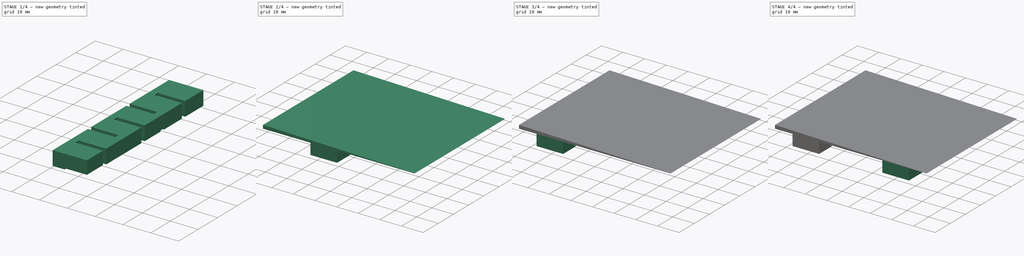
[diagram: build sequence overview — one tinted view per stage of 4, left to right]
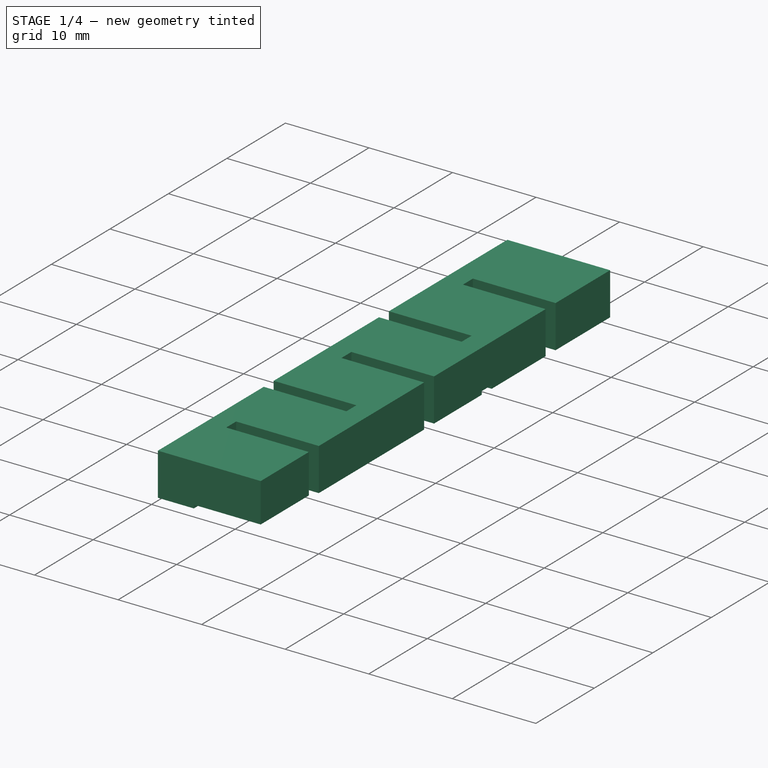
[diagram: stage 1 of 4 — iso view after this stage's code; geometry added in this stage tinted green]
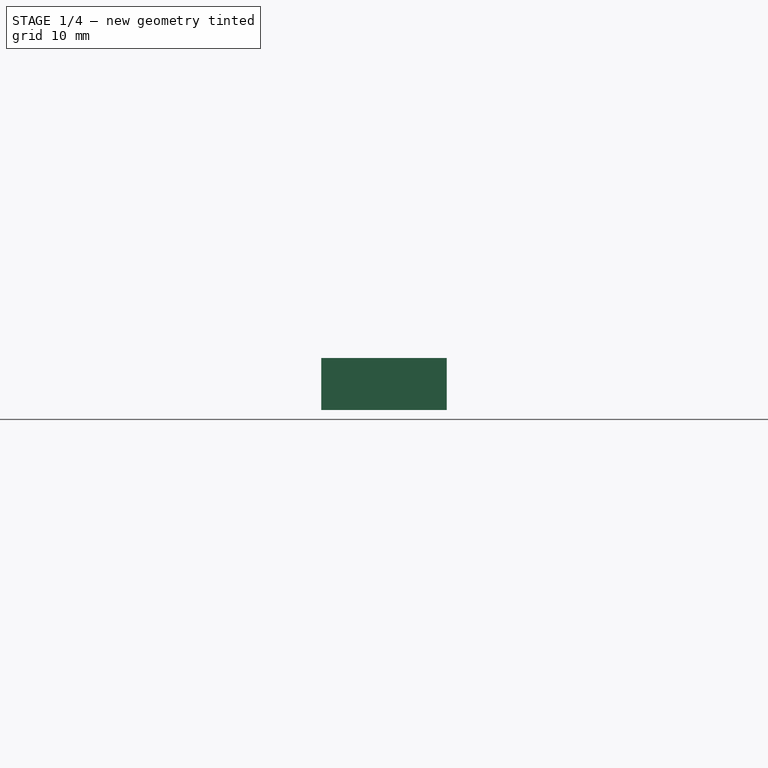
[diagram: stage 1 of 4 — front view after this stage's code; geometry added in this stage tinted green]
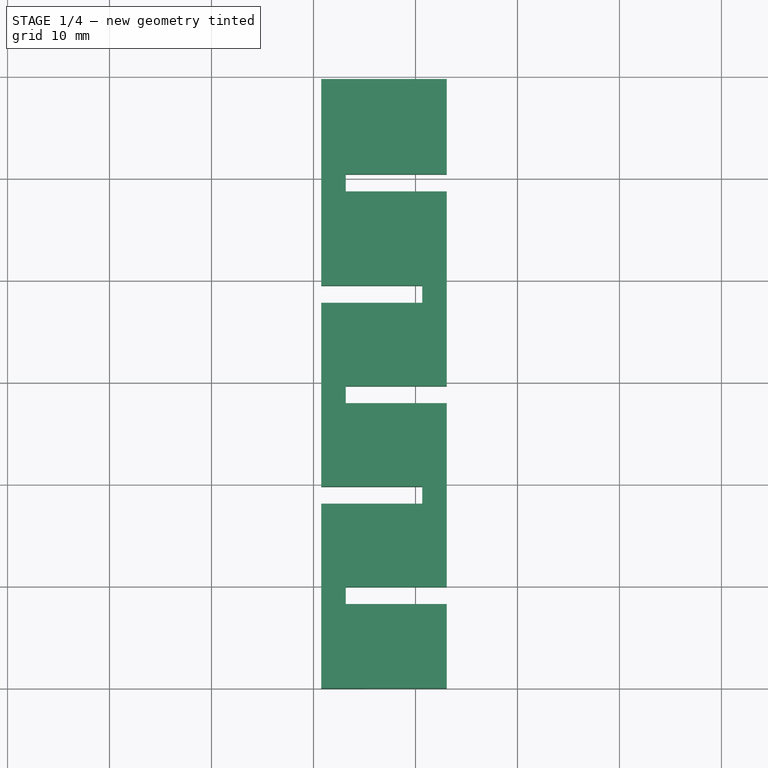
[diagram: stage 1 of 4 — top view after this stage's code; geometry added in this stage tinted green]
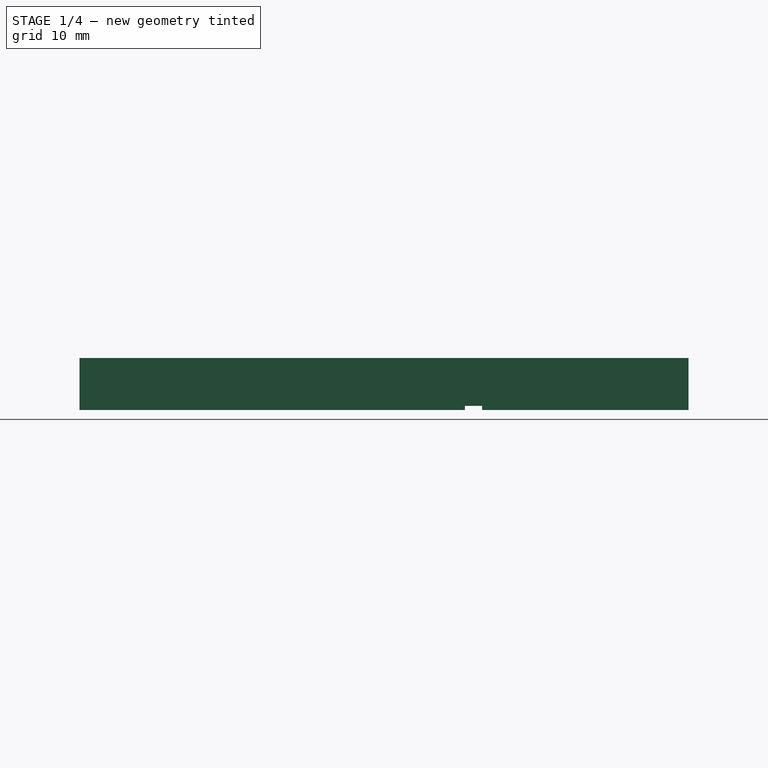
[diagram: stage 1 of 4 — right view after this stage's code; geometry added in this stage tinted green]
FCSTD DOCUMENT  (FreeCAD 0.21R33771 (Git))
Label: spacer
License: All rights reserved
LicenseURL: http://en.wikipedia.org/wiki/All_rights_reserved
objects: Sketcher::SketchObject×15, PartDesign::Plane×8, PartDesign::Pad×5, PartDesign::Pocket×5, PartDesign::Body×5, PartDesign::SubShapeBinder×3, Spreadsheet::Sheet×1
note: 51 computed .brp shape members not serialized (recipe doc carries the construction recipe); baked Part::Feature solids carry a one-line shape summary decoded from their .brp

FEATURE [Spreadsheet::Sheet] Spreadsheet
  cells = A1='GridW; B1(GridW)=12.3; A2='GridWallW; B2(GridWallW)=1.525; A3='GridCellL1; B3(GridCellL1)=8.325; A4='GridCellL2; B4(GridCellL2)=9.4; A5='GridSlitPad; B5(GridSlitPad)=0.0875; A6='GridSlitW; B6(GridSlitW)=2.4; A7='GridWallPad; B7(GridWallPad)=0; A8='GridHeight; B8(GridHeight)=5.1; A9='GridDotPock; B9(GridDotPock)=8; A10='GridPock; B10(GridPock)=0.4
FEATURE [Sketcher::SketchObject] Sketch
  FullyConstrained = true
  MapMode = 5
  Support = -> [XY_Plane]
  expr: Constraints[14] = Spreadsheet.GridCellL1 - Spreadsheet.GridSlitPad
  expr: Constraints[15] = Spreadsheet.GridW - Spreadsheet.GridSlitW - Spreadsheet.GridWallPad
  expr: Constraints[16] = Spreadsheet.GridWallW + Spreadsheet.GridSlitPad * 2
  expr: Constraints[2] = Spreadsheet.GridWallW / 2 + Spreadsheet.GridWallPad
  expr: Constraints[32] = Spreadsheet.GridCellL1 - Spreadsheet.GridSlitPad * 2
  expr: Constraints[5] = Spreadsheet.GridW - Spreadsheet.GridWallPad * 2
  expr: Constraints[69] = Spreadsheet.GridCellL2 - Spreadsheet.GridSlitPad * 2
  expr: Constraints[82] = Spreadsheet.GridCellL2 - Spreadsheet.GridSlitPad
  sketch-geometry (29):
    g0: LineSegment StartX=0 StartY=0 StartZ=0 EndX=0.7625 EndY=0 EndZ=0
    g1: LineSegment StartX=0.7625 StartY=0 StartZ=0 EndX=13.0625 EndY=0 EndZ=0
    g2: LineSegment StartX=13.0625 StartY=0 StartZ=0 EndX=13.0625 EndY=8.2375 EndZ=0
    g3: LineSegment StartX=13.0625 StartY=8.2375 StartZ=0 EndX=3.1625 EndY=8.2375 EndZ=0
    g4: LineSegment StartX=3.1625 StartY=8.2375 StartZ=0 EndX=3.1625 EndY=9.9375 EndZ=0
    g5: LineSegment StartX=3.1625 StartY=9.9375 StartZ=0 EndX=13.0625 EndY=9.9375 EndZ=0
    g6: LineSegment StartX=0.7625 StartY=0 StartZ=0 EndX=0.7625 EndY=18.0875 EndZ=0
    g7: LineSegment StartX=0.7625 StartY=18.0875 StartZ=0 EndX=10.6625 EndY=18.0875 EndZ=0
    g8: LineSegment StartX=10.6625 StartY=18.0875 StartZ=0 EndX=10.6625 EndY=19.7875 EndZ=0
    g9: LineSegment StartX=10.6625 StartY=19.7875 StartZ=0 EndX=0.7625 EndY=19.7875 EndZ=0
    g10: LineSegment StartX=10.6625 StartY=18.0875 StartZ=0 EndX=10.6625 EndY=9.9375 EndZ=0
    g11: LineSegment StartX=13.0625 StartY=27.9375 StartZ=0 EndX=3.1625 EndY=27.9375 EndZ=0
    g12: LineSegment StartX=3.1625 StartY=27.9375 StartZ=0 EndX=3.1625 EndY=29.6375 EndZ=0
    g13: LineSegment StartX=3.1625 StartY=29.6375 StartZ=0 EndX=13.0625 EndY=29.6375 EndZ=0
    g14: LineSegment StartX=3.1625 StartY=27.9375 StartZ=0 EndX=3.1625 EndY=19.7875 EndZ=0
    g15: LineSegment StartX=0.7625 StartY=19.7875 StartZ=0 EndX=0.7625 EndY=37.7875 EndZ=0
    g16: LineSegment StartX=0.7625 StartY=37.7875 StartZ=0 EndX=10.6625 EndY=37.7875 EndZ=0
    g17: LineSegment StartX=10.6625 StartY=37.7875 StartZ=0 EndX=10.6625 EndY=29.6375 EndZ=0
    g18: LineSegment StartX=10.6625 StartY=37.7875 StartZ=0 EndX=10.6625 EndY=39.4875 EndZ=0
    g19: LineSegment StartX=10.6625 StartY=39.4875 StartZ=0 EndX=0.7625 EndY=39.4875 EndZ=0
    g20: LineSegment StartX=13.0625 StartY=29.6375 StartZ=0 EndX=13.0625 EndY=48.7125 EndZ=0
    g21: LineSegment StartX=0.7625 StartY=39.4875 StartZ=0 EndX=0.7625 EndY=59.725 EndZ=0
    g22: LineSegment StartX=13.0625 StartY=48.7125 StartZ=0 EndX=3.1625 EndY=48.7125 EndZ=0
    g23: LineSegment StartX=3.1625 StartY=48.7125 StartZ=0 EndX=3.1625 EndY=39.4875 EndZ=0
    g24: LineSegment StartX=3.1625 StartY=48.7125 StartZ=0 EndX=3.1625 EndY=50.4125 EndZ=0
    g25: LineSegment StartX=3.1625 StartY=50.4125 StartZ=0 EndX=13.0625 EndY=50.4125 EndZ=0
    g26: LineSegment StartX=0.7625 StartY=59.725 StartZ=0 EndX=13.0625 EndY=59.725 EndZ=0
    g27: LineSegment StartX=13.0625 StartY=59.725 StartZ=0 EndX=13.0625 EndY=50.4125 EndZ=0
    g28: LineSegment StartX=13.0625 StartY=9.9375 StartZ=0 EndX=13.0625 EndY=27.9375 EndZ=0
  constraints (86):
    c: Coincident(g0,g-1)
    c: PointOnObject(g0,g-1)
    c: Distance(g0) = 0.7625
    c: Coincident(g1,g0)
    c: PointOnObject(g1,g-1)
    c: Distance(g1) = 12.3
    c: Coincident(g2,g1)
    c: Vertical(g2)
    c: Coincident(g3,g2)
    c: Horizontal(g3)
    c: Coincident(g4,g3)
    c: Vertical(g4)
    c: Coincident(g5,g4)
    c: Horizontal(g5)
    c: Distance(g2) = 8.2375
    c: Distance(g3) = 9.9
    c: Distance(g4) = 1.7
    c: Equal(g5,g3)
    c: Coincident(g6,g1)
    c: Vertical(g6)
    c: Coincident(g7,g6)
    c: Horizontal(g7)
    c: Equal(g7,g5)
    c: Coincident(g8,g7)
    c: Vertical(g8)
    c: Equal(g8,g4)
    c: Coincident(g9,g8)
    c: Horizontal(g9)
    c: Equal(g9,g7)
    c: Coincident(g10,g7)
    c: PointOnObject(g10,g5)
    c: Vertical(g10)
    c: Distance(g10) = 8.15
    c: Horizontal(g11)
    c: Equal(g11,g9)
    c: Coincident(g12,g11)
    c: Vertical(g12)
    c: Equal(g12,g8)
    c: Coincident(g13,g12)
    c: Horizontal(g13)
    c: Equal(g13,g11)
    c: Coincident(g14,g11)
    c: PointOnObject(g14,g9)
    c: Vertical(g14)
    c: Equal(g14,g10)
    c: Coincident(g15,g9)
    c: Vertical(g15)
    c: Coincident(g16,g15)
    c: Horizontal(g16)
    c: Equal(g16,g13)
    c: Coincident(g17,g16)
    c: PointOnObject(g17,g13)
    c: Vertical(g17)
    c: Equal(g17,g14)
    c: Coincident(g18,g16)
    c: Vertical(g18)
    c: Equal(g18,g12)
    c: Coincident(g19,g18)
    c: Horizontal(g19)
    c: Equal(g19,g16)
    c: Coincident(g20,g13)
    c: Vertical(g20)
    c: Coincident(g21,g19)
    c: Vertical(g21)
    c: Coincident(g22,g20)
    c: Horizontal(g22)
    c: Coincident(g23,g22)
    c: PointOnObject(g23,g19)
    c: Vertical(g23)
    c: Distance(g23) = 9.225
    c: Equal(g19,g22)
    c: Coincident(g24,g22)
    c: Vertical(g24)
    c: Equal(g24,g18)
    c: Coincident(g25,g24)
    c: Horizontal(g25)
    c: Equal(g25,g22)
    c: Coincident(g26,g21)
    c: Horizontal(g26)
    c: Coincident(g27,g26)
    c: Coincident(g27,g25)
    c: Vertical(g27)
    c: Distance(g27) = 9.3125
    c: Coincident(g28,g5)
    c: Coincident(g28,g11)
    c: Vertical(g28)
FEATURE [PartDesign::Pad] Pad
  Direction = (0,0,1)
  Length = 5.1
  Length2 = 10
  Profile = -> Sketch
  ReferenceAxis = -> Sketch [N_Axis]
  Type = 0
  expr: Length = Spreadsheet.GridHeight
FEATURE [PartDesign::Plane] DatumPlane
  Length = 63.0173
  MapMode = 5
  Placement = pos=(0,0,0) rot=(1,0,0;3.14159rad)
  ResizeMode = 0
  Support = -> [Pad]
  Width = 97.7423
FEATURE [Sketcher::SketchObject] Sketch001
  ExternalGeometry = -> [Pad]
  FullyConstrained = true
  MapMode = 5
  Placement = pos=(0,0,0) rot=(1,0,0;3.14159rad)
  Support = -> [DatumPlane]
  expr: Constraints[19] = Spreadsheet.GridDotPock
  sketch-geometry (8):
    g0: LineSegment StartX=10.6625 StartY=-37.7875 StartZ=0 EndX=13.0625 EndY=-37.7875 EndZ=0
    g1: LineSegment StartX=13.0625 StartY=-37.7875 StartZ=0 EndX=13.0625 EndY=-39.4875 EndZ=0
    g2: LineSegment StartX=13.0625 StartY=-39.4875 StartZ=0 EndX=10.6625 EndY=-39.4875 EndZ=0
    g3: LineSegment StartX=10.6625 StartY=-39.4875 StartZ=0 EndX=10.6625 EndY=-37.7875 EndZ=0
    g4: LineSegment StartX=13.0625 StartY=0 StartZ=0 EndX=5.0625 EndY=0 EndZ=0
    g5: LineSegment StartX=5.0625 StartY=0 StartZ=0 EndX=5.0625 EndY=-8.2375 EndZ=0
    g6: LineSegment StartX=5.0625 StartY=-8.2375 StartZ=0 EndX=13.0625 EndY=-8.2375 EndZ=0
    g7: LineSegment StartX=13.0625 StartY=-8.2375 StartZ=0 EndX=13.0625 EndY=0 EndZ=0
  constraints (20):
    c: Coincident(g0,g1)
    c: Coincident(g1,g2)
    c: Coincident(g2,g3)
    c: Coincident(g3,g0)
    c: Horizontal(g0)
    c: Horizontal(g2)
    c: Vertical(g1)
    c: Coincident(g0,g-5)
    c: PointOnObject(g1,g-6)
    c: Coincident(g2,g-5)
    c: Coincident(g4,g5)
    c: Coincident(g5,g6)
    c: Coincident(g6,g7)
    c: Coincident(g7,g4)
    c: Horizontal(g4)
    c: Horizontal(g6)
    c: Vertical(g5)
    c: Coincident(g4,g-3)
    c: Coincident(g6,g-4)
    c: Distance(g6) = 8
FEATURE [PartDesign::Pocket] Pocket
  BaseFeature = -> Pad
  Direction = (0,0,1)
  Length = 0.4
  Length2 = 5
  Profile = -> Sketch001
  ReferenceAxis = -> Sketch001 [N_Axis]
  Type = 0
  expr: Length = Spreadsheet.GridPock
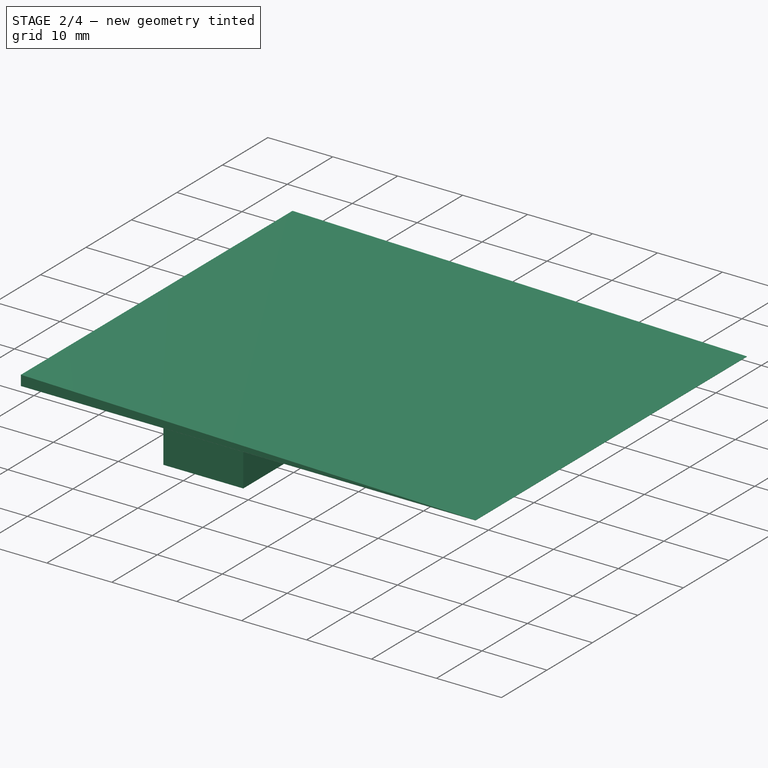
[diagram: stage 2 of 4 — iso view after this stage's code; geometry added in this stage tinted green]
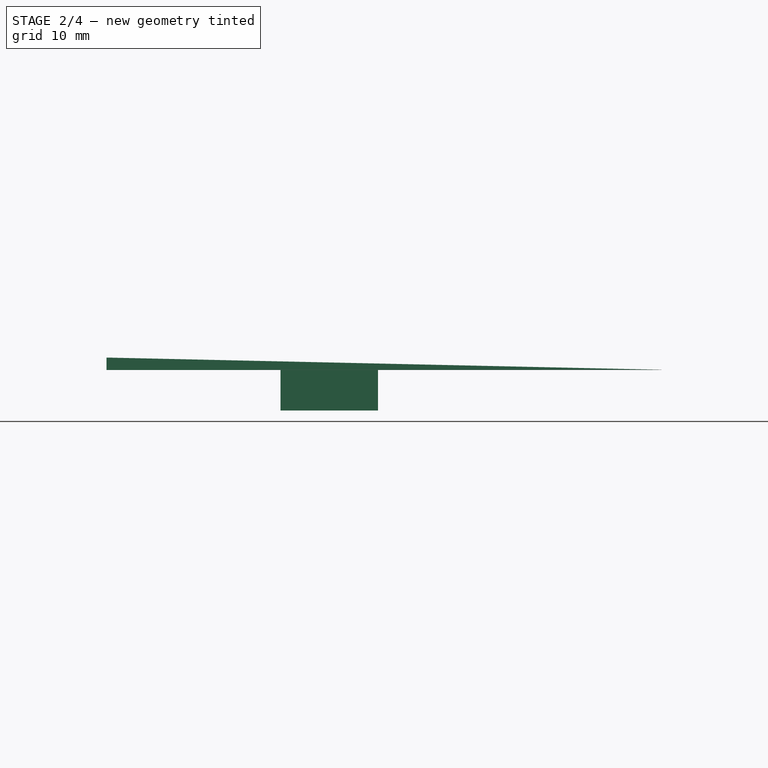
[diagram: stage 2 of 4 — front view after this stage's code; geometry added in this stage tinted green]
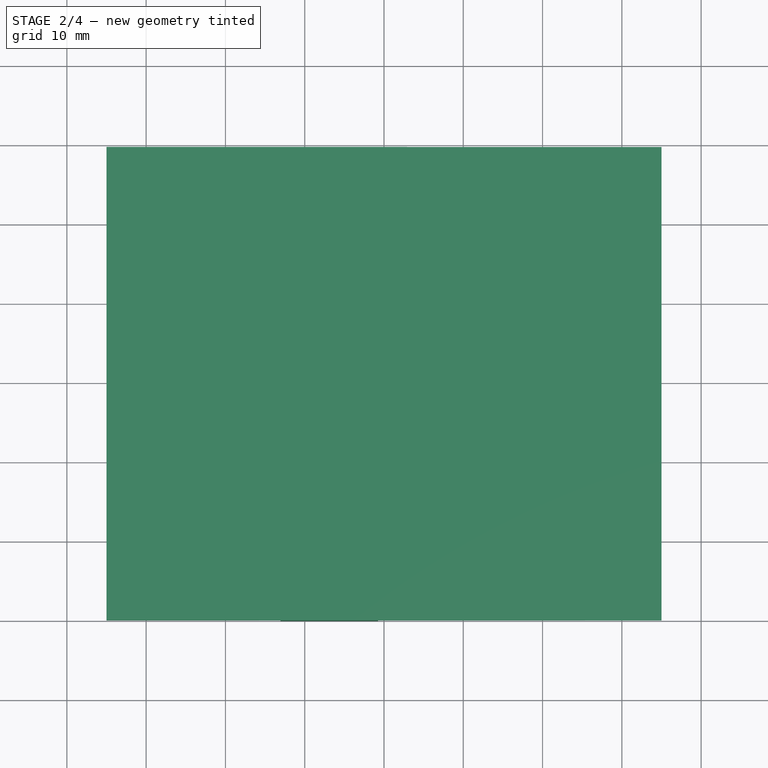
[diagram: stage 2 of 4 — top view after this stage's code; geometry added in this stage tinted green]
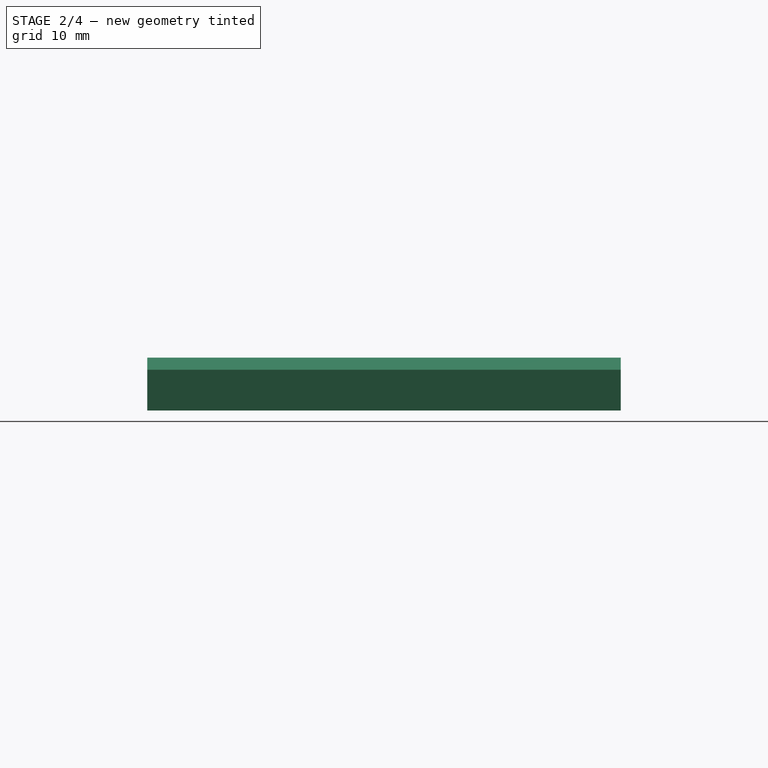
[diagram: stage 2 of 4 — right view after this stage's code; geometry added in this stage tinted green]
FEATURE [PartDesign::Body] Body
  Group = -> [Sketch,Pad,DatumPlane,Sketch001,Pocket]
  Origin = -> Origin
  Tip = -> Pocket
FEATURE [Sketcher::SketchObject] Sketch002
  FullyConstrained = true
  MapMode = 5
  Support = -> [XY_Plane001]
  expr: Constraints[12] = Spreadsheet.GridWallW + Spreadsheet.GridSlitPad * 2
  expr: Constraints[2] = Spreadsheet.GridWallW / 2 + Spreadsheet.GridWallPad
  expr: Constraints[30] = Spreadsheet.GridCellL1 - Spreadsheet.GridSlitPad * 2
  expr: Constraints[31] = Spreadsheet.GridW - Spreadsheet.GridSlitW - Spreadsheet.GridWallPad
  expr: Constraints[5] = Spreadsheet.GridW - Spreadsheet.GridWallPad * 2
  expr: Constraints[71] = Spreadsheet.GridCellL2 - Spreadsheet.GridSlitPad * 2
  expr: Constraints[85] = Spreadsheet.GridCellL2 - Spreadsheet.GridSlitPad
  expr: Constraints[8] = Spreadsheet.GridCellL1 - Spreadsheet.GridSlitPad
  sketch-geometry (29):
    g0: LineSegment StartX=0 StartY=0 StartZ=0 EndX=-0.7625 EndY=0 EndZ=0
    g1: LineSegment StartX=-0.7625 StartY=0 StartZ=0 EndX=-13.0625 EndY=0 EndZ=0
    g2: LineSegment StartX=-13.0625 StartY=0 StartZ=0 EndX=-13.0625 EndY=8.2375 EndZ=0
    g3: LineSegment StartX=-13.0625 StartY=8.2375 StartZ=0 EndX=-3.1625 EndY=8.2375 EndZ=0
    g4: LineSegment StartX=-3.1625 StartY=8.2375 StartZ=0 EndX=-3.1625 EndY=9.9375 EndZ=0
    g5: LineSegment StartX=-0.7625 StartY=0 StartZ=0 EndX=-0.7625 EndY=18.0875 EndZ=0
    g6: LineSegment StartX=-0.7625 StartY=18.0875 StartZ=0 EndX=-10.6625 EndY=18.0875 EndZ=0
    g7: LineSegment StartX=-10.6625 StartY=18.0875 StartZ=0 EndX=-10.6625 EndY=9.9375 EndZ=0
    g8: LineSegment StartX=-10.6625 StartY=18.0875 StartZ=0 EndX=-10.6625 EndY=19.7875 EndZ=0
    g9: LineSegment StartX=-10.6625 StartY=19.7875 StartZ=0 EndX=-0.7625 EndY=19.7875 EndZ=0
    g10: LineSegment StartX=-3.1625 StartY=9.9375 StartZ=0 EndX=-13.0625 EndY=9.9375 EndZ=0
    g11: LineSegment StartX=-13.0625 StartY=9.9375 StartZ=0 EndX=-13.0625 EndY=27.9375 EndZ=0
    g12: LineSegment StartX=-13.0625 StartY=27.9375 StartZ=0 EndX=-3.1625 EndY=27.9375 EndZ=0
    g13: LineSegment StartX=-3.1625 StartY=27.9375 StartZ=0 EndX=-3.1625 EndY=19.7875 EndZ=0
    g14: LineSegment StartX=-3.1625 StartY=27.9375 StartZ=0 EndX=-3.1625 EndY=29.6375 EndZ=0
    g15: LineSegment StartX=-3.1625 StartY=29.6375 StartZ=0 EndX=-13.0625 EndY=29.6375 EndZ=0
    g16: LineSegment StartX=-0.7625 StartY=19.7875 StartZ=0 EndX=-0.7625 EndY=37.7875 EndZ=0
    g17: LineSegment StartX=-0.7625 StartY=37.7875 StartZ=0 EndX=-10.6625 EndY=37.7875 EndZ=0
    g18: LineSegment StartX=-10.6625 StartY=37.7875 StartZ=0 EndX=-10.6625 EndY=29.6375 EndZ=0
    g19: LineSegment StartX=-10.6625 StartY=37.7875 StartZ=0 EndX=-10.6625 EndY=39.4875 EndZ=0
    g20: LineSegment StartX=-10.6625 StartY=39.4875 StartZ=0 EndX=-0.7625 EndY=39.4875 EndZ=0
    g21: LineSegment StartX=-13.0625 StartY=29.6375 StartZ=0 EndX=-13.0625 EndY=48.7125 EndZ=0
    g22: LineSegment StartX=-13.0625 StartY=48.7125 StartZ=0 EndX=-3.1625 EndY=48.7125 EndZ=0
    g23: LineSegment StartX=-3.1625 StartY=48.7125 StartZ=0 EndX=-3.1625 EndY=39.4875 EndZ=0
    g24: LineSegment StartX=-3.1625 StartY=48.7125 StartZ=0 EndX=-3.1625 EndY=50.4125 EndZ=0
    g25: LineSegment StartX=-3.1625 StartY=50.4125 StartZ=0 EndX=-13.0625 EndY=50.4125 EndZ=0
    g26: LineSegment StartX=-0.7625 StartY=39.4875 StartZ=0 EndX=-0.7625 EndY=59.725 EndZ=0
    g27: LineSegment StartX=-13.0625 StartY=50.4125 StartZ=0 EndX=-13.0625 EndY=59.725 EndZ=0
    g28: LineSegment StartX=-13.0625 StartY=59.725 StartZ=0 EndX=-0.7625 EndY=59.725 EndZ=0
  constraints (86):
    c: Coincident(g0,g-1)
    c: PointOnObject(g0,g-1)
    c: Distance(g0) = 0.7625
    c: Coincident(g1,g0)
    c: PointOnObject(g1,g-1)
    c: Distance(g1) = 12.3
    c: Coincident(g2,g1)
    c: Vertical(g2)
    c: Distance(g2) = 8.2375
    c: Coincident(g3,g2)
    c: Coincident(g4,g3)
    c: Vertical(g4)
    c: Distance(g4) = 1.7
    c: Coincident(g5,g1)
    c: Vertical(g5)
    c: Coincident(g6,g5)
    c: Coincident(g7,g6)
    c: Coincident(g8,g6)
    c: Vertical(g8)
    c: Coincident(g9,g8)
    c: Horizontal(g9)
    c: Equal(g8,g4)
    c: Equal(g9,g6)
    c: Coincident(g10,g4)
    c: Horizontal(g10)
    c: PointOnObject(g7,g10)
    c: Vertical(g7)
    c: Horizontal(g3)
    c: Vertical(g10,g2)
    c: Horizontal(g6)
    c: Distance(g7) = 8.15
    c: Distance(g3) = 9.9
    c: Equal(g6,g10)
    c: Coincident(g11,g10)
    c: Vertical(g11)
    c: Coincident(g12,g11)
    c: Horizontal(g12)
    c: Coincident(g13,g12)
    c: PointOnObject(g13,g9)
    c: Vertical(g13)
    c: Equal(g13,g7)
    c: Equal(g12,g9)
    c: Coincident(g14,g12)
    c: Vertical(g14)
    c: Equal(g14,g8)
    c: Coincident(g15,g14)
    c: Horizontal(g15)
    c: Equal(g15,g12)
    c: Coincident(g16,g9)
    c: Vertical(g16)
    c: Coincident(g17,g16)
    c: Horizontal(g17)
    c: Equal(g17,g15)
    c: Coincident(g18,g17)
    c: PointOnObject(g18,g15)
    c: Vertical(g18)
    c: Equal(g18,g13)
    c: Coincident(g19,g17)
    c: Vertical(g19)
    c: Equal(g19,g14)
    c: Coincident(g20,g19)
    c: Horizontal(g20)
    c: Equal(g20,g17)
    c: Coincident(g21,g15)
    c: Vertical(g21)
    c: Coincident(g22,g21)
    c: Horizontal(g22)
    c: Coincident(g23,g22)
    c: PointOnObject(g23,g20)
    c: Vertical(g23)
    c: Equal(g22,g20)
    c: Distance(g23) = 9.225
    c: Coincident(g24,g22)
    c: Vertical(g24)
    c: Equal(g24,g19)
    c: Coincident(g25,g24)
    c: Horizontal(g25)
    c: Equal(g25,g22)
    c: Coincident(g26,g20)
    c: Vertical(g26)
    c: Coincident(g27,g25)
    c: Vertical(g27)
    c: Coincident(g28,g27)
    c: Coincident(g28,g26)
    c: Horizontal(g28)
    c: Distance(g27) = 9.3125
FEATURE [PartDesign::Pad] Pad001
  Direction = (0,0,1)
  Length = 5.1
  Length2 = 10
  Profile = -> Sketch002
  ReferenceAxis = -> Sketch002 [N_Axis]
  Type = 0
  expr: Length = Spreadsheet.GridHeight
FEATURE [PartDesign::Body] Body003  label="Körper002"
  Group = -> [Binder001,Sketch006,Pad003,DatumPlane003,Sketch007,Pocket003]
  Origin = -> Origin003
  Tip = -> Pocket003
FEATURE [Sketcher::SketchObject] Sketch008
  FullyConstrained = true
  MapMode = 5
  Placement = pos=(0,0,0) rot=(1,0,0;1.5708rad)
  Support = -> [XZ_Plane004]
  expr: Constraints[2] = Spreadsheet.GridHeight
  sketch-geometry (1):
    g0: LineSegment StartX=0 StartY=0 StartZ=0 EndX=0 EndY=5.1 EndZ=0
  constraints (3):
    c: Coincident(g0,g-1)
    c: PointOnObject(g0,g-2)
    c: Distance(g0) = 5.1
FEATURE [PartDesign::Plane] DatumPlane004
  Length = 108.77
  MapMode = 1
  Placement = pos=(0,-1.1e-15,5.1) rot=(0,0,1;0rad)
  ResizeMode = 0
  Support = -> [Sketch008]
  Width = 104.52
FEATURE [Sketcher::SketchObject] Sketch009
  FullyConstrained = true
  MapMode = 5
  Placement = pos=(0,-1.1e-15,5.1) rot=(0,0,1;0rad)
  Support = -> [DatumPlane004]
  sketch-geometry (5):
    g0: LineSegment StartX=-45.5 StartY=61.75 StartZ=0 EndX=45.5 EndY=61.75 EndZ=0
    g1: LineSegment StartX=45.5 StartY=61.75 StartZ=0 EndX=45.5 EndY=-4.75 EndZ=0
    g2: LineSegment StartX=45.5 StartY=-4.75 StartZ=0 EndX=-45.5 EndY=-4.75 EndZ=0
    g3: LineSegment StartX=-45.5 StartY=-4.75 StartZ=0 EndX=-45.5 EndY=61.75 EndZ=0
    g4: LineSegment StartX=0 StartY=0 StartZ=0 EndX=0 EndY=-4.75 EndZ=0
  constraints (15):
    c: Coincident(g0,g1)
    c: Coincident(g1,g2)
    c: Coincident(g2,g3)
    c: Coincident(g3,g0)
    c: Horizontal(g2)
    c: Vertical(g1)
    c: Vertical(g3)
    c: Symmetric(g0,g0,g-2)
    c: Distance(g2) = 91
    c: Distance(g1) = 66.5
    c: PointOnObject(g4,g-1)
    c: PointOnObject(g4,g2)
    c: Vertical(g4)
    c: PointOnObject(g4,g-2)
    c: Distance(g4) = 4.75
FEATURE [PartDesign::Plane] DatumPlane005
  AttachmentOffset = pos=(0,0,0) rot=(0,-1,0;1.5708rad)
  Length = 104.491
  MapMode = 7
  Placement = pos=(45.5,-4.75,5.1) rot=(1,0,0;1.5708rad)
  ResizeMode = 0
  Support = -> [Sketch009]
  Width = 63.4907
FEATURE [Sketcher::SketchObject] Sketch010
  ExternalGeometry = -> [Sketch009]
  FullyConstrained = true
  MapMode = 5
  Placement = pos=(45.5,-4.75,5.1) rot=(1,0,0;1.5708rad)
  Support = -> [DatumPlane005]
  sketch-geometry (4):
    g0: GeomPoint X=-91 Y=1.8 Z=0
    g1: GeomPoint X=0 Y=-0.2 Z=0
    g2: LineSegment StartX=-91 StartY=1.8 StartZ=0 EndX=-91 EndY=0 EndZ=0
    g3: LineSegment StartX=0 StartY=0 StartZ=0 EndX=0 EndY=-0.2 EndZ=0
  constraints (8):
    c: Coincident(g2,g0)
    c: Coincident(g2,g-3)
    c: Vertical(g2)
    c: Distance(g2) = 1.8
    c: Coincident(g3,g-3)
    c: Vertical(g3)
    c: Coincident(g1,g3)
    c: Distance(g3) = 0.2
FEATURE [PartDesign::Plane] DatumPlane006
  AttachmentOffset = pos=(0,0,0) rot=(0,-1,0;1.5708rad)
  Length = 104.491
  MapMode = 7
  Placement = pos=(-45.5,61.75,5.1) rot=(0,0.707107,0.707107;3.14159rad)
  ResizeMode = 0
  Support = -> [Sketch009]
  Width = 63.4907
FEATURE [Sketcher::SketchObject] Sketch011
  ExternalGeometry = -> [Sketch009]
  FullyConstrained = true
  MapMode = 5
  Placement = pos=(-45.5,61.75,5.1) rot=(0,0.707107,0.707107;3.14159rad)
  Support = -> [DatumPlane006]
  sketch-geometry (2):
    g0: GeomPoint X=-91 Y=-0.2 Z=0
    g1: LineSegment StartX=-91 StartY=0 StartZ=0 EndX=-91 EndY=-0.2 EndZ=0
  constraints (4):
    c: Coincident(g1,g-3)
    c: Vertical(g1)
    c: Coincident(g1,g0)
    c: Distance(g1) = 0.2
FEATURE [PartDesign::Plane] DatumPlane007
  Length = 104.625
  MapMode = 13
  Placement = pos=(15.1667,17.4167,5.56667) rot=(0.010986,0.010986,0.999879;1.57092rad)
  ResizeMode = 0
  Support = -> [Sketch010,Sketch011]
  Width = 109.951
FEATURE [Sketcher::SketchObject] Sketch013
  ExternalGeometry = -> [Sketch009]
  FullyConstrained = true
  MapMode = 5
  Placement = pos=(15.1667,17.4167,5.56667) rot=(0.010986,0.010986,0.999879;1.57092rad)
  Support = -> [DatumPlane007]
  sketch-geometry (9):
    g0: LineSegment StartX=51.0833 StartY=-24.8472 StartZ=0 EndX=51.0833 EndY=55.1528 EndZ=0
    g1: LineSegment StartX=51.0833 StartY=55.1528 StartZ=0 EndX=-28.9167 EndY=55.1528 EndZ=0
    g2: LineSegment StartX=-28.9167 StartY=55.1528 StartZ=0 EndX=-28.9167 EndY=-24.8472 EndZ=0
    g3: LineSegment StartX=-28.9167 StartY=-24.8472 StartZ=0 EndX=51.0833 EndY=-24.8472 EndZ=0
    g4: GeomPoint X=11.0833 Y=15.1528 Z=0
    g5: LineSegment StartX=11.0833 StartY=15.1528 StartZ=0 EndX=11.0833 EndY=60.6418 EndZ=0
    g6: LineSegment StartX=11.0833 StartY=15.1528 StartZ=0 EndX=11.0833 EndY=-30.3363 EndZ=0
    g7: LineSegment StartX=11.0833 StartY=15.1528 StartZ=0 EndX=-22.1667 EndY=15.1528 EndZ=0
    g8: LineSegment StartX=11.0833 StartY=15.1528 StartZ=0 EndX=44.3333 EndY=15.1528 EndZ=0
  constraints (25):
    c: Coincident(g0,g1)
    c: Coincident(g1,g2)
    c: Coincident(g2,g3)
    c: Coincident(g3,g0)
    c: Horizontal(g1)
    c: Horizontal(g3)
    c: Vertical(g0)
    c: Vertical(g2)
    c: Symmetric(g1,g0,g4)
    c: Coincident(g5,g4)
    c: PointOnObject(g5,g-3)
    c: Vertical(g5)
    c: Coincident(g6,g4)
    c: PointOnObject(g6,g-4)
    c: Vertical(g6)
    c: Equal(g5,g6)
    c: Coincident(g7,g4)
    c: PointOnObject(g7,g-5)
    c: Horizontal(g7)
    c: Coincident(g8,g4)
    c: PointOnObject(g8,g-6)
    c: Horizontal(g8)
    c: Equal(g8,g7)
    c: Distance(g1) = 80
    c: Equal(g1,g0)
FEATURE [Sketcher::SketchObject] Sketch014
  FullyConstrained = true
  MapMode = 5
  Placement = pos=(0,0,0) rot=(1,0,0;1.5708rad)
  Support = -> [XZ_Plane004]
  sketch-geometry (1):
    g0: LineSegment StartX=0 StartY=0 StartZ=0 EndX=0 EndY=50 EndZ=0
  constraints (3):
    c: Coincident(g0,g-1)
    c: PointOnObject(g0,g-2)
    c: Distance(g0) = 50
FEATURE [PartDesign::SubShapeBinder] Binder002
  BindCopyOnChange = 0
  BindMode = 0
  ClaimChildren = false
  Context = -> Body004 [Binder002.]
  Fuse = false
  MakeFace = true
  OffsetFill = false
  OffsetIntersection = false
  OffsetJoinType = 0
  OffsetOpenResult = false
  PartialLoad = false
  Relative = true
  Support = -> [Body[Pocket.Edge29,Pocket.Edge43]]
  _Version = 2
FEATURE [Sketcher::SketchObject] Sketch012
  ExternalGeometry = -> [Sketch009,Binder002]
  FullyConstrained = true
  MapMode = 5
  Placement = pos=(0,-1.1e-15,5.1) rot=(0,0,1;0rad)
  Support = -> [DatumPlane004]
  sketch-geometry (6):
    g0: LineSegment StartX=35 StartY=59.725 StartZ=0 EndX=-35 EndY=59.725 EndZ=0
    g1: LineSegment StartX=-35 StartY=59.725 StartZ=0 EndX=-35 EndY=0 EndZ=0
    g2: LineSegment StartX=-35 StartY=1.1e-15 StartZ=0 EndX=35 EndY=1.1e-15 EndZ=0
    g3: LineSegment StartX=35 StartY=1.1e-15 StartZ=0 EndX=35 EndY=59.725 EndZ=0
    g4: LineSegment StartX=-35 StartY=59.725 StartZ=0 EndX=-45.5 EndY=59.725 EndZ=0
    g5: LineSegment StartX=35 StartY=59.725 StartZ=0 EndX=45.5 EndY=59.725 EndZ=0
  constraints (18):
    c: Coincident(g0,g1)
    c: Coincident(g1,g2)
    c: Coincident(g2,g3)
    c: Coincident(g3,g0)
    c: Horizontal(g0)
    c: Horizontal(g2)
    c: Vertical(g1)
    c: Vertical(g3)
    c: Coincident(g4,g0)
    c: PointOnObject(g4,g-5)
    c: Horizontal(g4)
    c: Coincident(g5,g0)
    c: PointOnObject(g5,g-6)
    c: Horizontal(g5)
    c: Equal(g5,g4)
    c: Distance(g2) = 70
    c: PointOnObject(g-8,g2)
    c: PointOnObject(g-7,g0)
FEATURE [PartDesign::Pad] Pad004
  Direction = (0,0,1)
  Length = 2
  Length2 = 10
  Placement = pos=(0,-1.1e-15,5.1) rot=(0,0,1;0rad)
  Profile = -> Sketch012
  ReferenceAxis = -> Sketch012 [N_Axis]
  Type = 0
FEATURE [PartDesign::Pocket] Pocket004
  BaseFeature = -> Pad004
  Direction = (0,2e-16,-1)
  Length = 5
  Length2 = 5
  Placement = pos=(0,-1.1e-15,5.1) rot=(0,0,1;0rad)
  Profile = -> Sketch013
  ReferenceAxis = -> Sketch014 [Edge1]
  Reversed = true
  Type = 2
FEATURE [PartDesign::Body] Body004  label="Körper003"
  Group = -> [Sketch008,DatumPlane004,Sketch009,DatumPlane005,Sketch010,DatumPlane006,Sketch011,DatumPlane007,Sketch012,Pad004,Sketch013,Sketch014,Pocket004,Binder002]
  Origin = -> Origin004
  Tip = -> Pocket004
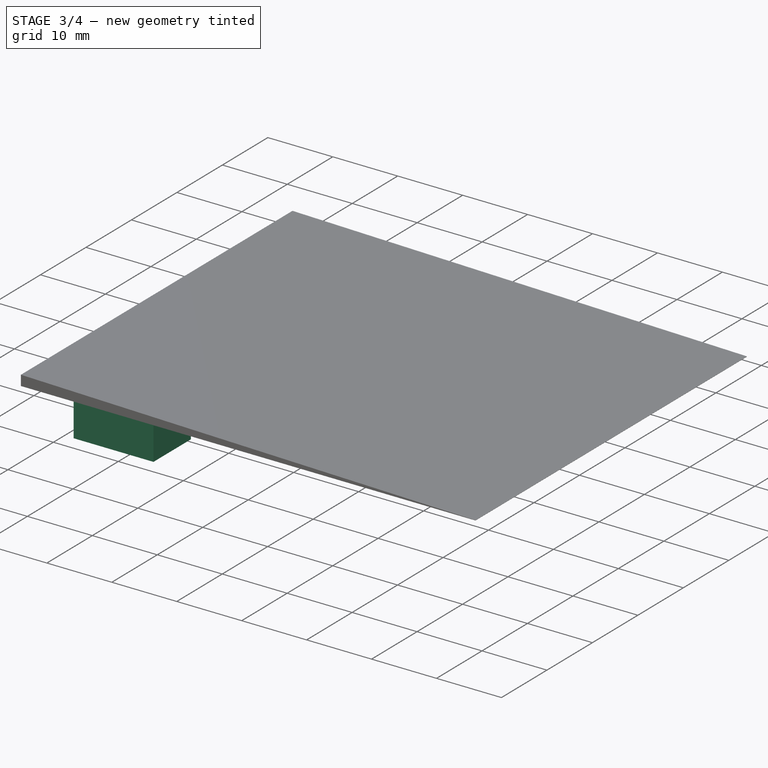
[diagram: stage 3 of 4 — iso view after this stage's code; geometry added in this stage tinted green]
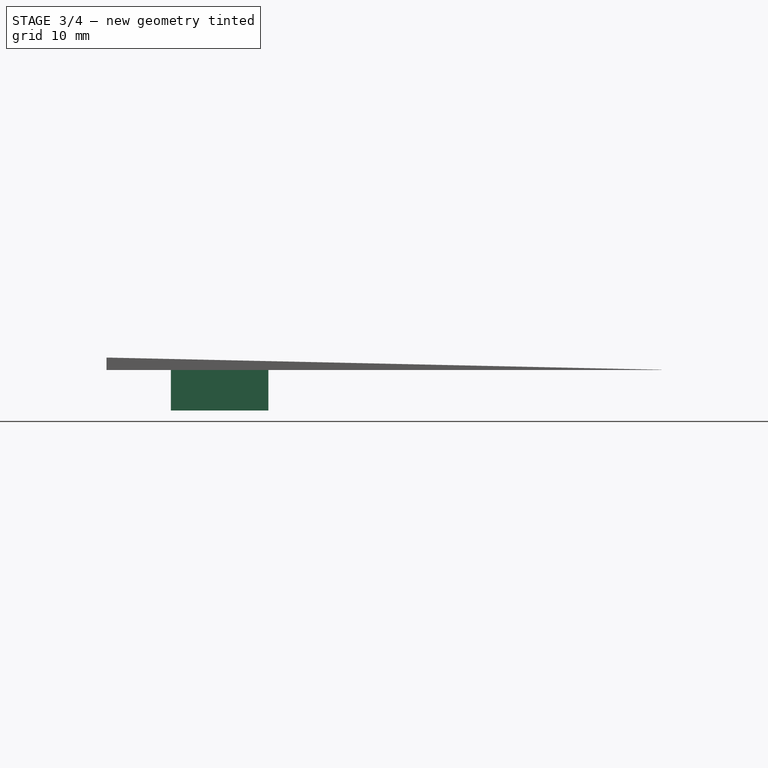
[diagram: stage 3 of 4 — front view after this stage's code; geometry added in this stage tinted green]
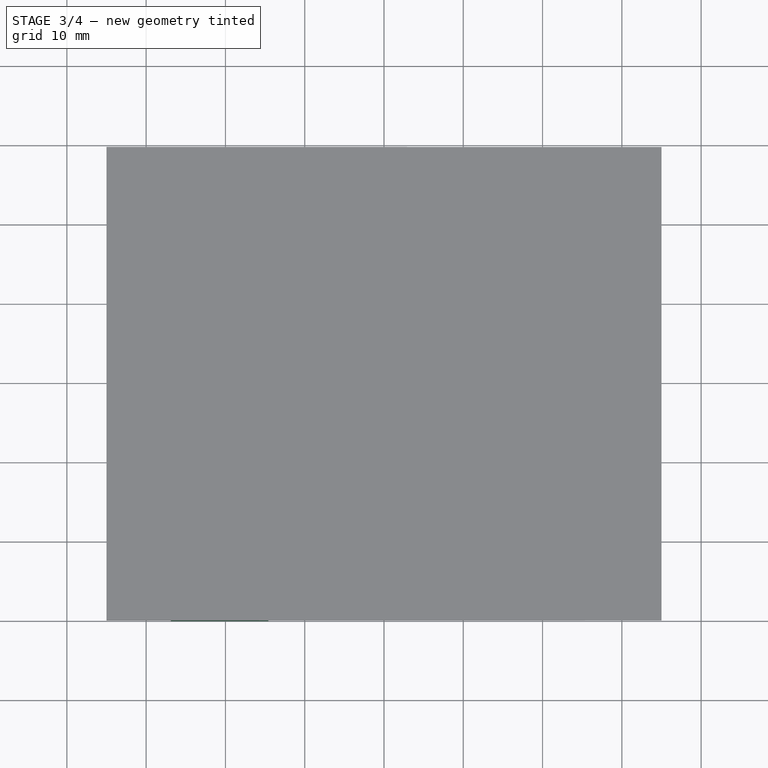
[diagram: stage 3 of 4 — top view after this stage's code; geometry added in this stage tinted green]
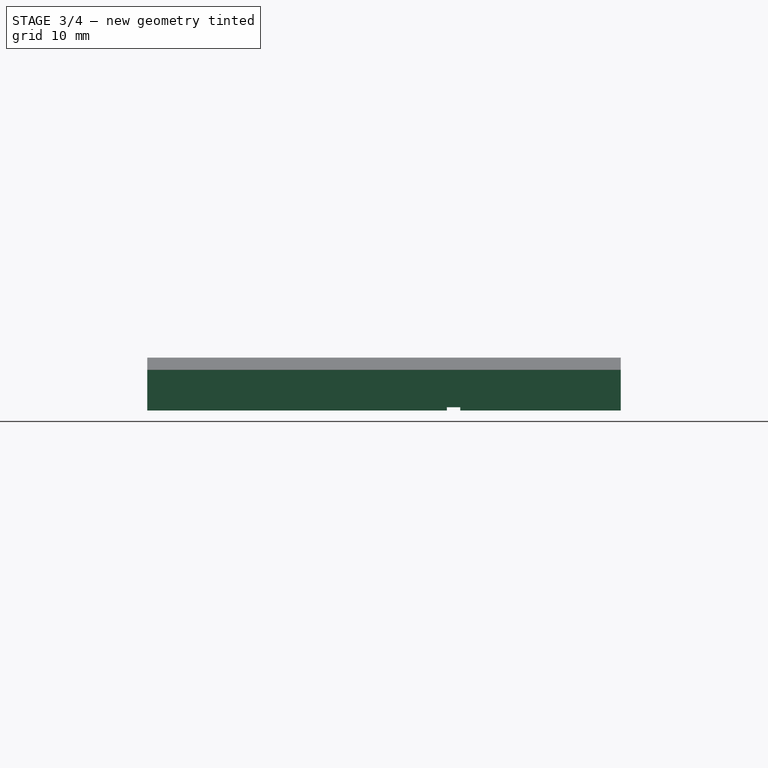
[diagram: stage 3 of 4 — right view after this stage's code; geometry added in this stage tinted green]
FEATURE [PartDesign::Plane] DatumPlane001
  Length = 63.0173
  MapMode = 5
  Placement = pos=(0,0,0) rot=(1,0,0;3.14159rad)
  ResizeMode = 0
  Support = -> [Pad001]
  Width = 97.7423
FEATURE [Sketcher::SketchObject] Sketch003
  ExternalGeometry = -> [Pad001]
  FullyConstrained = true
  MapMode = 5
  Placement = pos=(0,0,0) rot=(1,0,0;3.14159rad)
  Support = -> [DatumPlane001]
  expr: Constraints[10] = Spreadsheet.GridDotPock
  sketch-geometry (8):
    g0: LineSegment StartX=-13.0625 StartY=-8.2375 StartZ=0 EndX=-5.0625 EndY=-8.2375 EndZ=0
    g1: LineSegment StartX=-5.0625 StartY=-8.2375 StartZ=0 EndX=-5.0625 EndY=0 EndZ=0
    g2: LineSegment StartX=-5.0625 StartY=0 StartZ=0 EndX=-13.0625 EndY=0 EndZ=0
    g3: LineSegment StartX=-13.0625 StartY=0 StartZ=0 EndX=-13.0625 EndY=-8.2375 EndZ=0
    g4: LineSegment StartX=-10.6625 StartY=-37.7875 StartZ=0 EndX=-13.0625 EndY=-37.7875 EndZ=0
    g5: LineSegment StartX=-13.0625 StartY=-37.7875 StartZ=0 EndX=-13.0625 EndY=-39.4875 EndZ=0
    g6: LineSegment StartX=-13.0625 StartY=-39.4875 StartZ=0 EndX=-10.6625 EndY=-39.4875 EndZ=0
    g7: LineSegment StartX=-10.6625 StartY=-39.4875 StartZ=0 EndX=-10.6625 EndY=-37.7875 EndZ=0
  constraints (21):
    c: Coincident(g0,g1)
    c: Coincident(g1,g2)
    c: Coincident(g2,g3)
    c: Coincident(g3,g0)
    c: Horizontal(g0)
    c: Horizontal(g2)
    c: Vertical(g1)
    c: Vertical(g3)
    c: Coincident(g0,g-3)
    c: PointOnObject(g1,g-4)
    c: Distance(g2) = 8
    c: Coincident(g4,g5)
    c: Coincident(g5,g6)
    c: Coincident(g6,g7)
    c: Coincident(g7,g4)
    c: Horizontal(g4)
    c: Horizontal(g6)
    c: Vertical(g5)
    c: Coincident(g4,g-5)
    c: PointOnObject(g5,g-6)
    c: Coincident(g-5,g6)
FEATURE [PartDesign::Pocket] Pocket001
  BaseFeature = -> Pad001
  Direction = (0,0,1)
  Length = 0.4
  Length2 = 5
  Profile = -> Sketch003
  ReferenceAxis = -> Sketch003 [N_Axis]
  Type = 0
  expr: Length = Spreadsheet.GridPock
FEATURE [PartDesign::Body] Body002  label="Körper001"
  Group = -> [Binder,Sketch004,Pad002,DatumPlane002,Sketch005,Pocket002]
  Origin = -> Origin002
  Tip = -> Pocket002
FEATURE [PartDesign::SubShapeBinder] Binder001
  BindCopyOnChange = 0
  BindMode = 0
  ClaimChildren = false
  Context = -> Body003 [Binder001.]
  Fuse = false
  MakeFace = true
  OffsetFill = false
  OffsetIntersection = false
  OffsetJoinType = 0
  OffsetOpenResult = false
  PartialLoad = false
  Relative = true
  Support = -> [Body001[Sketch002.Edge1]]
  _Version = 2
FEATURE [Sketcher::SketchObject] Sketch006
  ExternalGeometry = -> [Binder001]
  FullyConstrained = true
  MapMode = 5
  Support = -> [XY_Plane003]
  expr: Constraints[10] = Spreadsheet.GridCellL1 - Spreadsheet.GridSlitPad
  expr: Constraints[15] = Spreadsheet.GridW - Spreadsheet.GridSlitW - Spreadsheet.GridWallPad
  expr: Constraints[16] = Spreadsheet.GridWallW + Spreadsheet.GridSlitPad * 2
  expr: Constraints[2] = Spreadsheet.GridWallW + Spreadsheet.GridWallPad * 2
  expr: Constraints[34] = Spreadsheet.GridCellL1 - Spreadsheet.GridSlitPad * 2
  expr: Constraints[5] = Spreadsheet.GridW - Spreadsheet.GridWallPad * 2
  expr: Constraints[67] = Spreadsheet.GridCellL2 - Spreadsheet.GridSlitPad * 2
  expr: Constraints[85] = Spreadsheet.GridCellL2 - Spreadsheet.GridSlitPad
  sketch-geometry (29):
    g0: LineSegment StartX=-13.0625 StartY=0 StartZ=0 EndX=-14.5875 EndY=0 EndZ=0
    g1: LineSegment StartX=-14.5875 StartY=0 StartZ=0 EndX=-26.8875 EndY=0 EndZ=0
    g2: LineSegment StartX=-14.5875 StartY=0 StartZ=0 EndX=-14.5875 EndY=8.2375 EndZ=0
    g3: LineSegment StartX=-14.5875 StartY=8.2375 StartZ=0 EndX=-24.4875 EndY=8.2375 EndZ=0
    g4: LineSegment StartX=-24.4875 StartY=8.2375 StartZ=0 EndX=-24.4875 EndY=9.9375 EndZ=0
    g5: LineSegment StartX=-24.4875 StartY=9.9375 StartZ=0 EndX=-14.5875 EndY=9.9375 EndZ=0
    g6: LineSegment StartX=-26.8875 StartY=0 StartZ=0 EndX=-26.8875 EndY=18.0875 EndZ=0
    g7: LineSegment StartX=-14.5875 StartY=9.9375 StartZ=0 EndX=-14.5875 EndY=27.9375 EndZ=0
    g8: LineSegment StartX=-26.8875 StartY=18.0875 StartZ=0 EndX=-16.9875 EndY=18.0875 EndZ=0
    g9: LineSegment StartX=-16.9875 StartY=18.0875 StartZ=0 EndX=-16.9875 EndY=19.7875 EndZ=0
    g10: LineSegment StartX=-16.9875 StartY=19.7875 StartZ=0 EndX=-26.8875 EndY=19.7875 EndZ=0
    g11: LineSegment StartX=-16.9875 StartY=18.0875 StartZ=0 EndX=-16.9875 EndY=9.9375 EndZ=0
    g12: LineSegment StartX=-26.8875 StartY=19.7875 StartZ=0 EndX=-26.8875 EndY=37.7875 EndZ=0
    g13: LineSegment StartX=-14.5875 StartY=27.9375 StartZ=0 EndX=-24.4875 EndY=27.9375 EndZ=0
    g14: LineSegment StartX=-24.4875 StartY=27.9375 StartZ=0 EndX=-24.4875 EndY=29.6375 EndZ=0
    g15: LineSegment StartX=-24.4875 StartY=29.6375 StartZ=0 EndX=-14.5875 EndY=29.6375 EndZ=0
    g16: LineSegment StartX=-24.4875 StartY=27.9375 StartZ=0 EndX=-24.4875 EndY=19.7875 EndZ=0
    g17: LineSegment StartX=-26.8875 StartY=37.7875 StartZ=0 EndX=-16.9875 EndY=37.7875 EndZ=0
    g18: LineSegment StartX=-16.9875 StartY=37.7875 StartZ=0 EndX=-16.9875 EndY=39.4875 EndZ=0
    g19: LineSegment StartX=-16.9875 StartY=39.4875 StartZ=0 EndX=-26.8875 EndY=39.4875 EndZ=0
    g20: LineSegment StartX=-16.9875 StartY=37.7875 StartZ=0 EndX=-16.9875 EndY=29.6375 EndZ=0
    g21: LineSegment StartX=-26.8875 StartY=39.4875 StartZ=0 EndX=-26.8875 EndY=59.725 EndZ=0
    g22: LineSegment StartX=-24.4875 StartY=48.7125 StartZ=0 EndX=-24.4875 EndY=39.4875 EndZ=0
    g23: LineSegment StartX=-14.5875 StartY=29.6375 StartZ=0 EndX=-14.5875 EndY=48.7125 EndZ=0
    g24: LineSegment StartX=-14.5875 StartY=48.7125 StartZ=0 EndX=-24.4875 EndY=48.7125 EndZ=0
    g25: LineSegment StartX=-24.4875 StartY=48.7125 StartZ=0 EndX=-24.4875 EndY=50.4125 EndZ=0
    g26: LineSegment StartX=-24.4875 StartY=50.4125 StartZ=0 EndX=-14.5875 EndY=50.4125 EndZ=0
    g27: LineSegment StartX=-14.5875 StartY=50.4125 StartZ=0 EndX=-14.5875 EndY=59.725 EndZ=0
    g28: LineSegment StartX=-14.5875 StartY=59.725 StartZ=0 EndX=-26.8875 EndY=59.725 EndZ=0
  constraints (86):
    c: Coincident(g0,g-3)
    c: PointOnObject(g0,g-1)
    c: Distance(g0) = 1.525
    c: Coincident(g1,g0)
    c: PointOnObject(g1,g-1)
    c: Distance(g1) = 12.3
    c: Coincident(g2,g1)
    c: Vertical(g2)
    c: Coincident(g3,g2)
    c: Horizontal(g3)
    c: Distance(g2) = 8.2375
    c: Coincident(g4,g3)
    c: Coincident(g5,g4)
    c: Vertical(g4)
    c: Horizontal(g5)
    c: Distance(g3) = 9.9
    c: Distance(g4) = 1.7
    c: Equal(g5,g3)
    c: Coincident(g6,g1)
    c: Vertical(g6)
    c: Coincident(g7,g5)
    c: Vertical(g7)
    c: Coincident(g8,g6)
    c: Horizontal(g8)
    c: Coincident(g9,g8)
    c: Coincident(g10,g9)
    c: Horizontal(g10)
    c: Vertical(g9)
    c: Equal(g8,g5)
    c: Equal(g9,g4)
    c: Equal(g10,g8)
    c: Coincident(g11,g8)
    c: PointOnObject(g11,g5)
    c: Vertical(g11)
    c: Distance(g11) = 8.15
    c: Coincident(g12,g10)
    c: Vertical(g12)
    c: Coincident(g13,g7)
    c: Coincident(g14,g13)
    c: Coincident(g15,g14)
    c: Horizontal(g13)
    c: Horizontal(g15)
    c: Vertical(g14)
    c: Coincident(g16,g13)
    c: PointOnObject(g16,g10)
    c: Vertical(g16)
    c: Equal(g16,g11)
    c: Equal(g13,g10)
    c: Equal(g14,g9)
    c: Equal(g15,g13)
    c: Coincident(g17,g12)
    c: Horizontal(g17)
    c: Coincident(g18,g17)
    c: Coincident(g19,g18)
    c: Vertical(g18)
    c: Horizontal(g19)
    c: Coincident(g20,g17)
    c: PointOnObject(g20,g15)
    c: Vertical(g20)
    c: Equal(g20,g16)
    c: Equal(g17,g15)
    c: Equal(g18,g14)
    c: Equal(g19,g17)
    c: Coincident(g21,g19)
    c: Vertical(g21)
    c: PointOnObject(g22,g19)
    c: Vertical(g22)
    c: Distance(g22) = 9.225
    c: Coincident(g23,g15)
    c: Vertical(g23)
    c: Coincident(g24,g23)
    c: Horizontal(g24)
    c: Equal(g24,g19)
    c: Coincident(g25,g24)
    c: Vertical(g25)
    c: Equal(g25,g18)
    c: Coincident(g26,g25)
    c: Horizontal(g26)
    c: Equal(g26,g24)
    c: Coincident(g22,g24)
    c: Coincident(g27,g26)
    c: Coincident(g28,g27)
    c: Coincident(g28,g21)
    c: Horizontal(g28)
    c: Vertical(g27)
    c: Distance(g27) = 9.3125
FEATURE [PartDesign::Pad] Pad003
  Direction = (0,0,1)
  Length = 5.1
  Length2 = 10
  Profile = -> Sketch006
  ReferenceAxis = -> Sketch006 [N_Axis]
  Type = 0
  expr: Length = Spreadsheet.GridHeight
FEATURE [PartDesign::Plane] DatumPlane003
  Length = 65.1482
  MapMode = 5
  Placement = pos=(0,0,0) rot=(1,0,0;3.14159rad)
  ResizeMode = 0
  Support = -> [Pad003]
  Width = 97.9857
FEATURE [Sketcher::SketchObject] Sketch007
  ExternalGeometry = -> [Pad003]
  FullyConstrained = true
  MapMode = 5
  Placement = pos=(0,0,0) rot=(1,0,0;3.14159rad)
  Support = -> [DatumPlane003]
  sketch-geometry (4):
    g0: LineSegment StartX=-16.9875 StartY=-37.7875 StartZ=0 EndX=-14.5875 EndY=-37.7875 EndZ=0
    g1: LineSegment StartX=-14.5875 StartY=-37.7875 StartZ=0 EndX=-14.5875 EndY=-39.4875 EndZ=0
    g2: LineSegment StartX=-14.5875 StartY=-39.4875 StartZ=0 EndX=-16.9875 EndY=-39.4875 EndZ=0
    g3: LineSegment StartX=-16.9875 StartY=-39.4875 StartZ=0 EndX=-16.9875 EndY=-37.7875 EndZ=0
  constraints (10):
    c: Coincident(g0,g1)
    c: Coincident(g1,g2)
    c: Coincident(g2,g3)
    c: Coincident(g3,g0)
    c: Horizontal(g0)
    c: Horizontal(g2)
    c: Vertical(g1)
    c: Coincident(g0,g-3)
    c: Coincident(g2,g-3)
    c: PointOnObject(g0,g-4)
FEATURE [PartDesign::Pocket] Pocket003
  BaseFeature = -> Pad003
  Direction = (0,0,1)
  Length = 0.4
  Length2 = 5
  Profile = -> Sketch007
  ReferenceAxis = -> Sketch007 [N_Axis]
  Type = 0
  expr: Length = Spreadsheet.GridPock
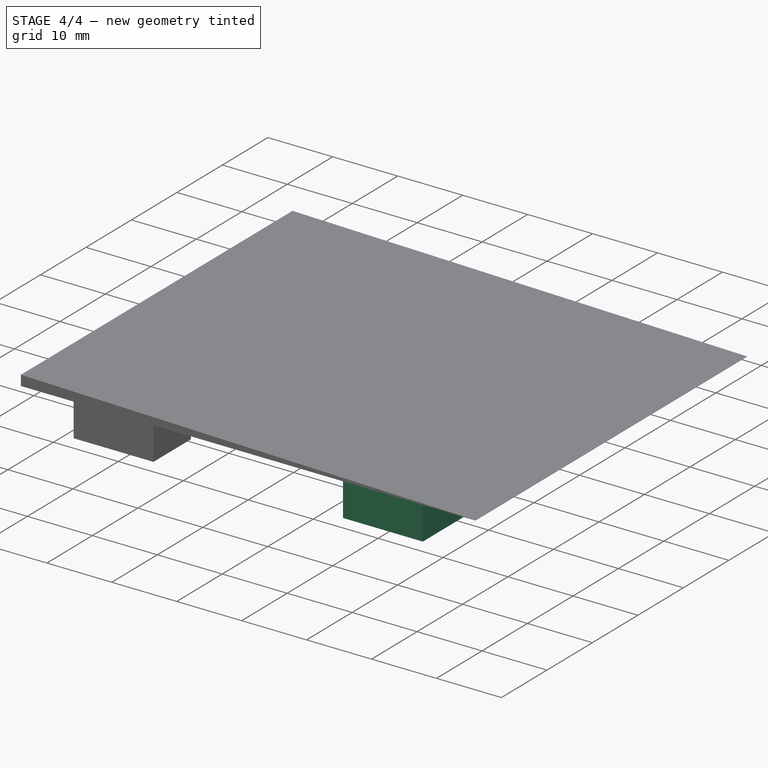
[diagram: stage 4 of 4 — iso view after this stage's code; geometry added in this stage tinted green]
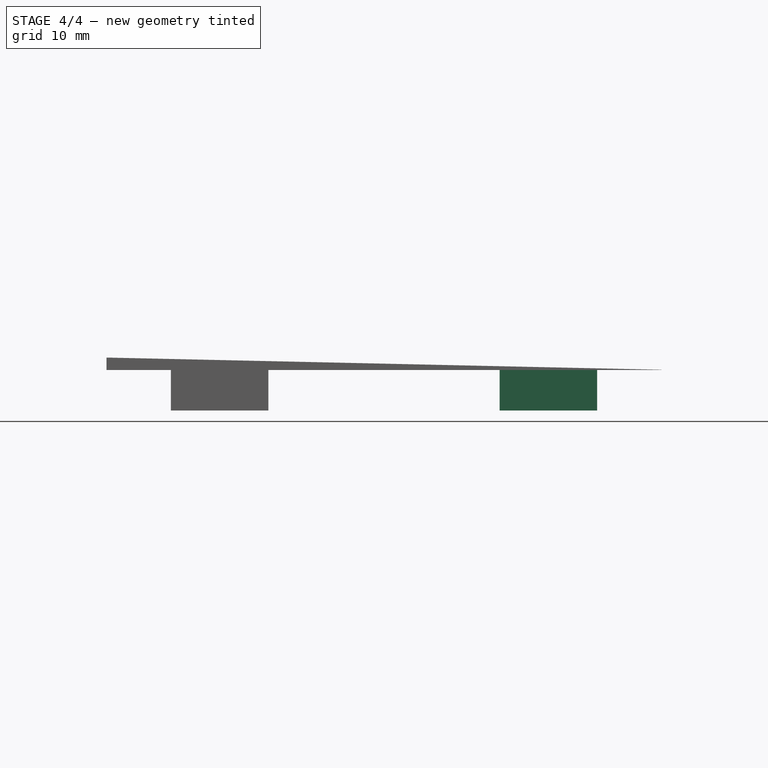
[diagram: stage 4 of 4 — front view after this stage's code; geometry added in this stage tinted green]
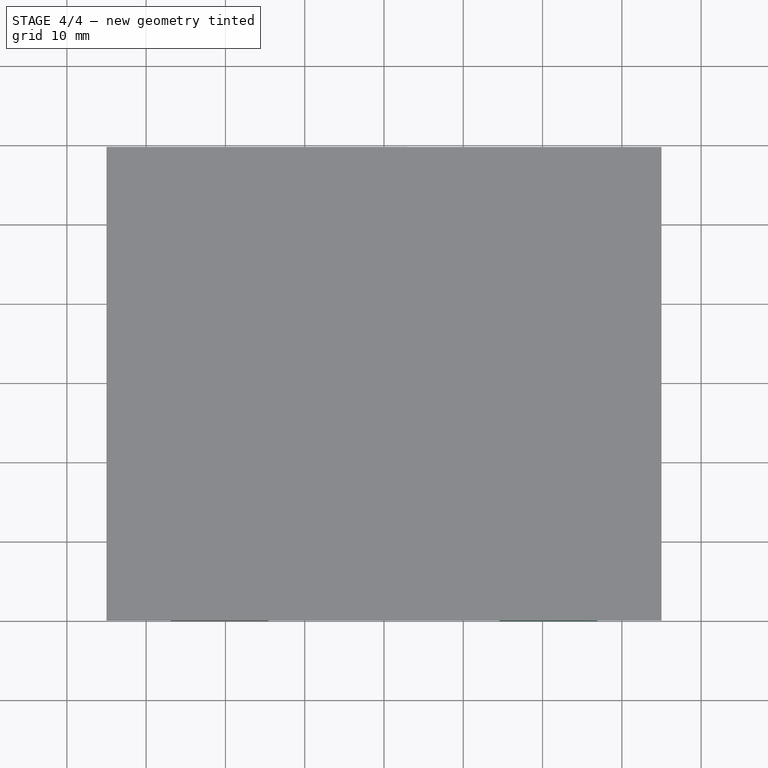
[diagram: stage 4 of 4 — top view after this stage's code; geometry added in this stage tinted green]
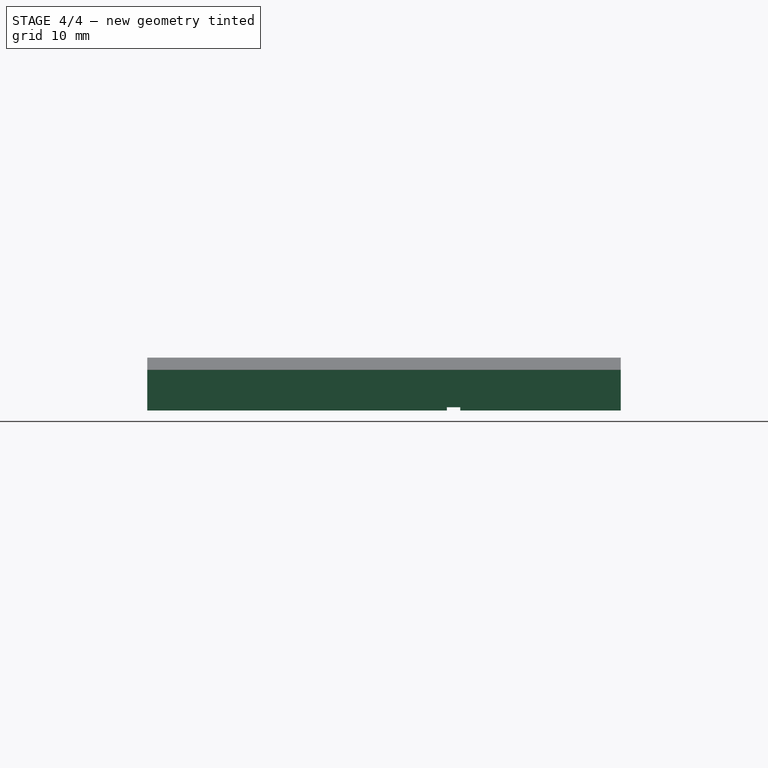
[diagram: stage 4 of 4 — right view after this stage's code; geometry added in this stage tinted green]
FEATURE [PartDesign::Body] Body001  label="Körper"
  Group = -> [Sketch002,Pad001,DatumPlane001,Sketch003,Pocket001]
  Origin = -> Origin001
  Tip = -> Pocket001
FEATURE [PartDesign::SubShapeBinder] Binder
  BindCopyOnChange = 0
  BindMode = 0
  ClaimChildren = false
  Context = -> Body002 [Binder.]
  Fuse = false
  MakeFace = true
  OffsetFill = false
  OffsetIntersection = false
  OffsetJoinType = 0
  OffsetOpenResult = false
  PartialLoad = false
  Relative = true
  Support = -> [Body[Sketch.Edge6]]
  _Version = 2
FEATURE [Sketcher::SketchObject] Sketch004
  ExternalGeometry = -> [Binder]
  FullyConstrained = true
  MapMode = 5
  Support = -> [XY_Plane002]
  expr: Constraints[14] = Spreadsheet.GridCellL1 - Spreadsheet.GridSlitPad
  expr: Constraints[15] = Spreadsheet.GridW - Spreadsheet.GridSlitW - Spreadsheet.GridWallPad
  expr: Constraints[16] = Spreadsheet.GridWallW + Spreadsheet.GridSlitPad * 2
  expr: Constraints[2] = Spreadsheet.GridWallW + Spreadsheet.GridWallPad * 2
  expr: Constraints[32] = Spreadsheet.GridCellL1 - Spreadsheet.GridSlitPad * 2
  expr: Constraints[5] = Spreadsheet.GridW - Spreadsheet.GridWallPad * 2
  expr: Constraints[72] = Spreadsheet.GridCellL2 - Spreadsheet.GridSlitPad * 2
  expr: Constraints[85] = Spreadsheet.GridCellL2 - Spreadsheet.GridSlitPad
  sketch-geometry (29):
    g0: LineSegment StartX=13.0625 StartY=0 StartZ=0 EndX=14.5875 EndY=0 EndZ=0
    g1: LineSegment StartX=14.5875 StartY=0 StartZ=0 EndX=26.8875 EndY=0 EndZ=0
    g2: LineSegment StartX=14.5875 StartY=0 StartZ=0 EndX=14.5875 EndY=8.2375 EndZ=0
    g3: LineSegment StartX=14.5875 StartY=8.2375 StartZ=0 EndX=24.4875 EndY=8.2375 EndZ=0
    g4: LineSegment StartX=24.4875 StartY=8.2375 StartZ=0 EndX=24.4875 EndY=9.9375 EndZ=0
    g5: LineSegment StartX=24.4875 StartY=9.9375 StartZ=0 EndX=14.5875 EndY=9.9375 EndZ=0
    g6: LineSegment StartX=26.8875 StartY=0 StartZ=0 EndX=26.8875 EndY=18.0875 EndZ=0
    g7: LineSegment StartX=26.8875 StartY=18.0875 StartZ=0 EndX=16.9875 EndY=18.0875 EndZ=0
    g8: LineSegment StartX=16.9875 StartY=18.0875 StartZ=0 EndX=16.9875 EndY=19.7875 EndZ=0
    g9: LineSegment StartX=16.9875 StartY=18.0875 StartZ=0 EndX=16.9875 EndY=9.9375 EndZ=0
    g10: LineSegment StartX=16.9875 StartY=19.7875 StartZ=0 EndX=26.8875 EndY=19.7875 EndZ=0
    g11: LineSegment StartX=14.5875 StartY=9.9375 StartZ=0 EndX=14.5875 EndY=27.9375 EndZ=0
    g12: LineSegment StartX=14.5875 StartY=27.9375 StartZ=0 EndX=24.4875 EndY=27.9375 EndZ=0
    g13: LineSegment StartX=24.4875 StartY=27.9375 StartZ=0 EndX=24.4875 EndY=29.6375 EndZ=0
    g14: LineSegment StartX=24.4875 StartY=29.6375 StartZ=0 EndX=14.5875 EndY=29.6375 EndZ=0
    g15: LineSegment StartX=24.4875 StartY=27.9375 StartZ=0 EndX=24.4875 EndY=19.7875 EndZ=0
    g16: LineSegment StartX=26.8875 StartY=19.7875 StartZ=0 EndX=26.8875 EndY=37.7875 EndZ=0
    g17: LineSegment StartX=26.8875 StartY=37.7875 StartZ=0 EndX=16.9875 EndY=37.7875 EndZ=0
    g18: LineSegment StartX=16.9875 StartY=37.7875 StartZ=0 EndX=16.9875 EndY=29.6375 EndZ=0
    g19: LineSegment StartX=16.9875 StartY=37.7875 StartZ=0 EndX=16.9875 EndY=39.4875 EndZ=0
    g20: LineSegment StartX=16.9875 StartY=39.4875 StartZ=0 EndX=26.8875 EndY=39.4875 EndZ=0
    g21: LineSegment StartX=14.5875 StartY=29.6375 StartZ=0 EndX=14.5875 EndY=48.7125 EndZ=0
    g22: LineSegment StartX=26.8875 StartY=39.4875 StartZ=0 EndX=26.8875 EndY=59.725 EndZ=0
    g23: LineSegment StartX=14.5875 StartY=48.7125 StartZ=0 EndX=24.4875 EndY=48.7125 EndZ=0
    g24: LineSegment StartX=24.4875 StartY=48.7125 StartZ=0 EndX=24.4875 EndY=39.4875 EndZ=0
    g25: LineSegment StartX=24.4875 StartY=48.7125 StartZ=0 EndX=24.4875 EndY=50.4125 EndZ=0
    g26: LineSegment StartX=24.4875 StartY=50.4125 StartZ=0 EndX=14.5875 EndY=50.4125 EndZ=0
    g27: LineSegment StartX=26.8875 StartY=59.725 StartZ=0 EndX=14.5875 EndY=59.725 EndZ=0
    g28: LineSegment StartX=14.5875 StartY=59.725 StartZ=0 EndX=14.5875 EndY=50.4125 EndZ=0
  constraints (86):
    c: Coincident(g0,g-3)
    c: PointOnObject(g0,g-1)
    c: Distance(g0) = 1.525
    c: Coincident(g1,g0)
    c: PointOnObject(g1,g-1)
    c: Distance(g1) = 12.3
    c: Coincident(g2,g1)
    c: Vertical(g2)
    c: Coincident(g3,g2)
    c: Horizontal(g3)
    c: Coincident(g4,g3)
    c: Vertical(g4)
    c: Coincident(g5,g4)
    c: Horizontal(g5)
    c: Distance(g2) = 8.2375
    c: Distance(g3) = 9.9
    c: Distance(g4) = 1.7
    c: Equal(g5,g3)
    c: Coincident(g6,g1)
    c: Vertical(g6)
    c: Coincident(g7,g6)
    c: Horizontal(g7)
    c: Coincident(g8,g7)
    c: Vertical(g8)
    c: Equal(g7,g5)
    c: Equal(g8,g4)
    c: Coincident(g9,g7)
    c: PointOnObject(g9,g5)
    c: Vertical(g9)
    c: Coincident(g10,g8)
    c: Horizontal(g10)
    c: Equal(g10,g7)
    c: Distance(g9) = 8.15
    c: Coincident(g11,g5)
    c: Vertical(g11)
    c: Coincident(g12,g11)
    c: Horizontal(g12)
    c: Coincident(g13,g12)
    c: Vertical(g13)
    c: Coincident(g14,g13)
    c: Horizontal(g14)
    c: Coincident(g15,g12)
    c: PointOnObject(g15,g10)
    c: Vertical(g15)
    c: Equal(g15,g9)
    c: Equal(g12,g10)
    c: Equal(g13,g8)
    c: Equal(g14,g12)
    c: Coincident(g16,g10)
    c: Vertical(g16)
    c: Coincident(g17,g16)
    c: Horizontal(g17)
    c: Coincident(g18,g17)
    c: PointOnObject(g18,g14)
    c: Vertical(g18)
    c: Equal(g18,g15)
    c: Equal(g17,g14)
    c: Coincident(g19,g17)
    c: Vertical(g19)
    c: Equal(g19,g13)
    c: Coincident(g20,g19)
    c: Horizontal(g20)
    c: Equal(g20,g17)
    c: Coincident(g21,g14)
    c: Vertical(g21)
    c: Coincident(g22,g20)
    c: Vertical(g22)
    c: Coincident(g23,g21)
    c: Horizontal(g23)
    c: Coincident(g24,g23)
    c: PointOnObject(g24,g20)
    c: Vertical(g24)
    c: Distance(g24) = 9.225
    c: Equal(g23,g20)
    c: Coincident(g25,g23)
    c: Vertical(g25)
    c: Equal(g25,g19)
    c: Coincident(g26,g25)
    c: Horizontal(g26)
    c: Equal(g26,g23)
    c: Coincident(g27,g22)
    c: Coincident(g28,g27)
    c: Coincident(g28,g26)
    c: Vertical(g28)
    c: Horizontal(g27)
    c: Distance(g28) = 9.3125
FEATURE [PartDesign::Pad] Pad002
  Direction = (0,0,1)
  Length = 5.1
  Length2 = 10
  Profile = -> Sketch004
  ReferenceAxis = -> Sketch004 [N_Axis]
  Type = 0
  expr: Length = Spreadsheet.GridHeight
FEATURE [PartDesign::Plane] DatumPlane002
  Length = 65.1482
  MapMode = 5
  Placement = pos=(0,0,0) rot=(1,0,0;3.14159rad)
  ResizeMode = 0
  Support = -> [Pad002]
  Width = 97.9857
FEATURE [Sketcher::SketchObject] Sketch005
  ExternalGeometry = -> [Pad002]
  FullyConstrained = true
  MapMode = 5
  Placement = pos=(0,0,0) rot=(1,0,0;3.14159rad)
  Support = -> [DatumPlane002]
  sketch-geometry (4):
    g0: LineSegment StartX=16.9875 StartY=-37.7875 StartZ=0 EndX=14.5875 EndY=-37.7875 EndZ=0
    g1: LineSegment StartX=14.5875 StartY=-37.7875 StartZ=0 EndX=14.5875 EndY=-39.4875 EndZ=0
    g2: LineSegment StartX=14.5875 StartY=-39.4875 StartZ=0 EndX=16.9875 EndY=-39.4875 EndZ=0
    g3: LineSegment StartX=16.9875 StartY=-39.4875 StartZ=0 EndX=16.9875 EndY=-37.7875 EndZ=0
  constraints (10):
    c: Coincident(g0,g1)
    c: Coincident(g1,g2)
    c: Coincident(g2,g3)
    c: Coincident(g3,g0)
    c: Horizontal(g0)
    c: Horizontal(g2)
    c: Vertical(g1)
    c: Coincident(g0,g-4)
    c: PointOnObject(g1,g-3)
    c: Coincident(g2,g-4)
FEATURE [PartDesign::Pocket] Pocket002
  BaseFeature = -> Pad002
  Direction = (0,0,1)
  Length = 0.4
  Length2 = 5
  Profile = -> Sketch005
  ReferenceAxis = -> Sketch005 [N_Axis]
  Type = 0
  expr: Length = Spreadsheet.GridPock
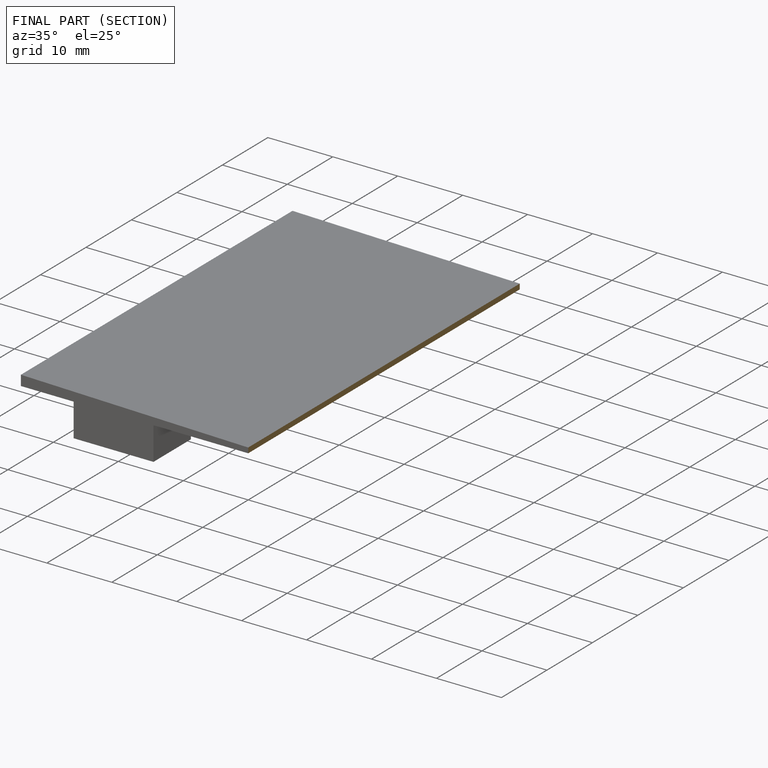
[diagram: finished part — half-section view (interior)]
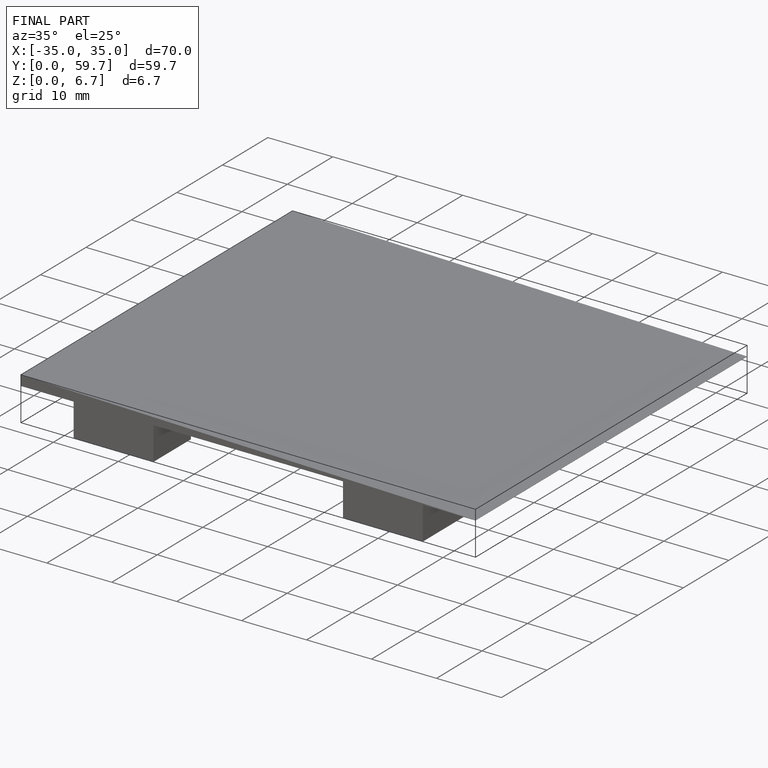
[diagram: finished part — iso view with bounding-box wireframe]
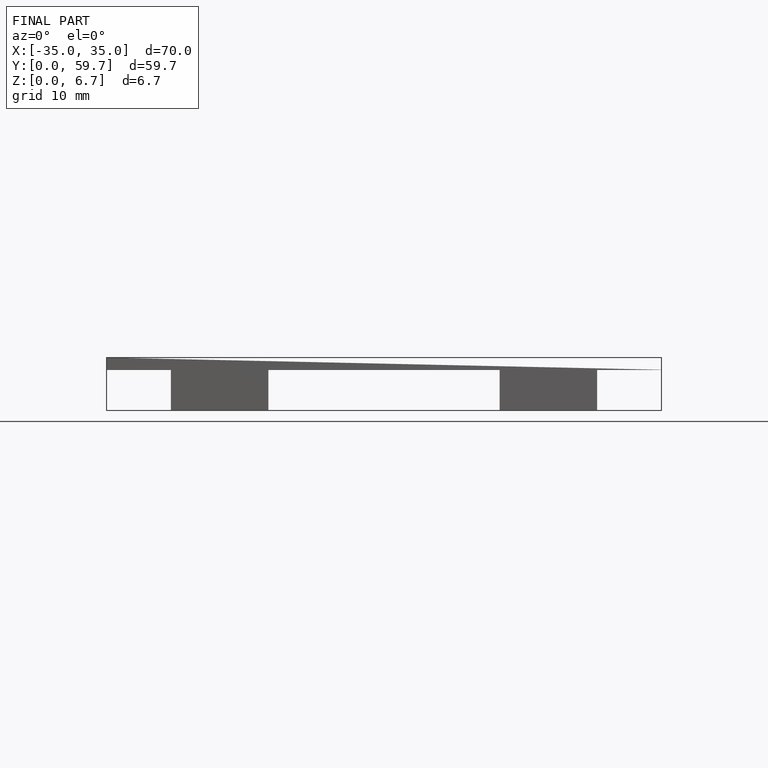
[diagram: finished part — front view with bounding-box wireframe]
